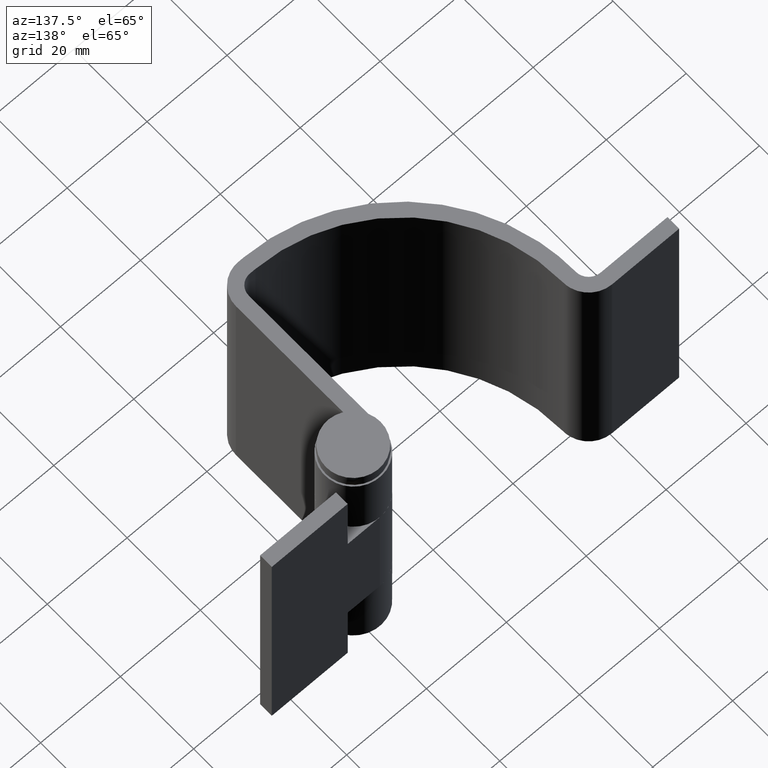
[diagram: clean part render]
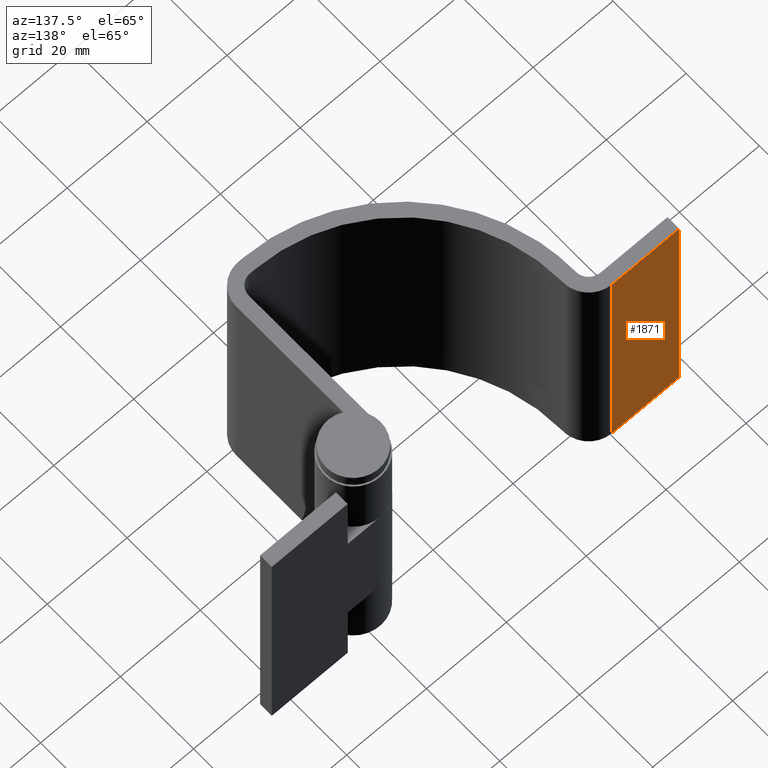
[diagram: same view with one face highlighted and labeled with its STEP entity id]
A machine part, auxiliary view. The second image highlights one B-rep face of the part: STEP entity #1871.
In plain terms, the highlighted face is a freeform B-spline surface patch.
Its self-contained STEP definition (entity closure, byte-faithful):
#1163=CARTESIAN_POINT('',(-75.0,7.200000000000000,5.0));
#1164=VERTEX_POINT('',#1163);
#1170=CARTESIAN_POINT('',(-58.200000000000003,7.200000000000000,5.0));
#1171=VERTEX_POINT('',#1170);
#1172=CARTESIAN_POINT('',(-75.0,7.200000000000000,5.0));
#1173=CARTESIAN_POINT('',(-58.200000000000003,7.200000000000000,5.0));
#1174=QUASI_UNIFORM_CURVE('',1,(#1172,#1173),.UNSPECIFIED.,.F.,.U.);
#1175=EDGE_CURVE('',#1164,#1171,#1174,.T.);
#1367=CARTESIAN_POINT('',(-75.0,7.200000000000000,70.0));
#1368=VERTEX_POINT('',#1367);
#1539=CARTESIAN_POINT('',(-58.200000000000003,7.200000000000000,70.0));
#1540=VERTEX_POINT('',#1539);
#1556=CARTESIAN_POINT('',(-75.0,7.200000000000000,70.0));
#1557=CARTESIAN_POINT('',(-58.200000000000003,7.200000000000000,70.0));
#1558=QUASI_UNIFORM_CURVE('',1,(#1556,#1557),.UNSPECIFIED.,.F.,.U.);
#1559=EDGE_CURVE('',#1368,#1540,#1558,.T.);
#1846=CARTESIAN_POINT('',(-58.200000000000003,7.200000000000000,70.0));
#1847=CARTESIAN_POINT('',(-58.200000000000003,7.200000000000000,5.0));
#1848=QUASI_UNIFORM_CURVE('',1,(#1846,#1847),.UNSPECIFIED.,.F.,.U.);
#1849=EDGE_CURVE('',#1540,#1171,#1848,.T.);
#1856=CARTESIAN_POINT('',(-75.839159907416928,7.200000000000000,1.753250125982612));
#1857=CARTESIAN_POINT('',(-75.839159907416942,7.200000000000000,73.246751617453242));
#1858=CARTESIAN_POINT('',(-57.360840843601594,7.200000000000000,1.753250125982612));
#1859=CARTESIAN_POINT('',(-57.360840843601594,7.200000000000000,73.246751617453242));
#1860=B_SPLINE_SURFACE_WITH_KNOTS('',1,1,((#1856,#1858),(#1857,#1859)),.UNSPECIFIED.,.F.,.F.,.U.,(2,2),(2,2),(0.0,71.493501491470624),(0.0,18.478319063815348),.UNSPECIFIED.);
#1861=ORIENTED_EDGE('',*,*,#1175,.F.);
#1862=CARTESIAN_POINT('',(-75.0,7.200000000000000,70.0));
#1863=CARTESIAN_POINT('',(-75.0,7.200000000000000,5.0));
#1864=QUASI_UNIFORM_CURVE('',1,(#1862,#1863),.UNSPECIFIED.,.F.,.U.);
#1865=EDGE_CURVE('',#1368,#1164,#1864,.T.);
#1866=ORIENTED_EDGE('',*,*,#1865,.F.);
#1867=ORIENTED_EDGE('',*,*,#1559,.T.);
#1868=ORIENTED_EDGE('',*,*,#1849,.T.);
#1869=EDGE_LOOP('',(#1861,#1866,#1867,#1868));
#1870=FACE_OUTER_BOUND('',#1869,.T.);
#1871=ADVANCED_FACE('',(#1870),#1860,.T.);